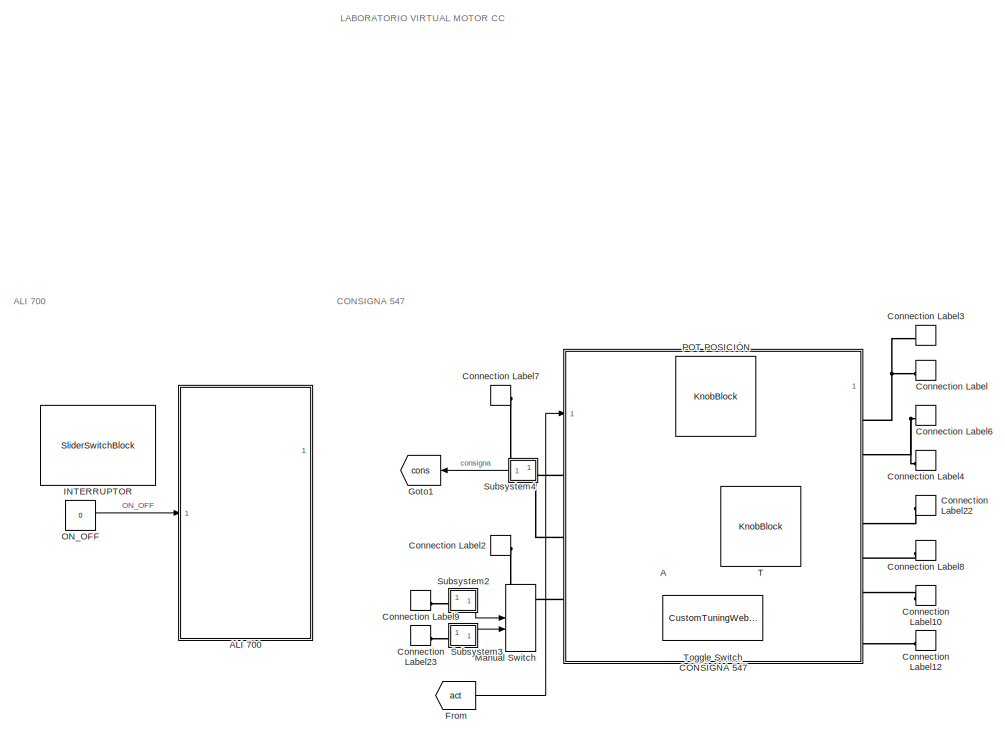
[diagram: root canvas - part 1/5, top left region]
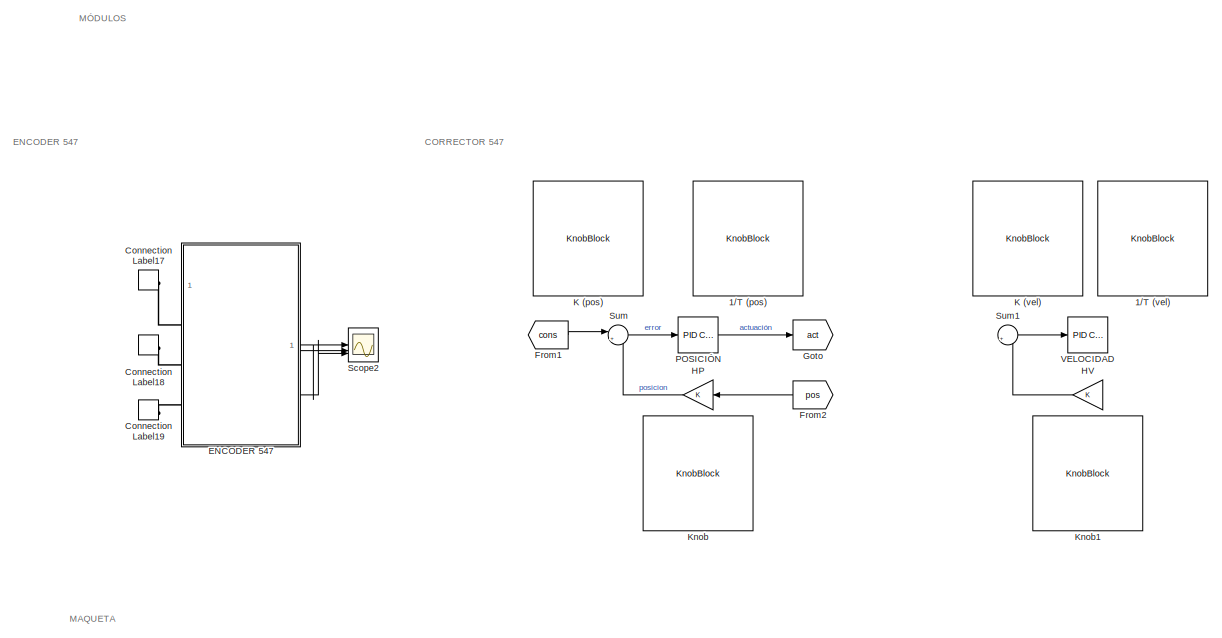
[diagram: root canvas - part 2/5, top right region]
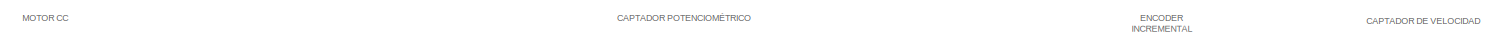
[diagram: root canvas - part 3/5, central region]
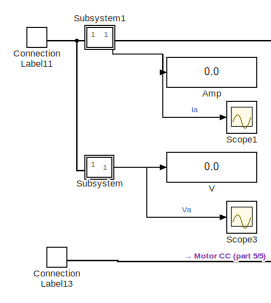
[diagram: root canvas - part 4/5, middle left region]
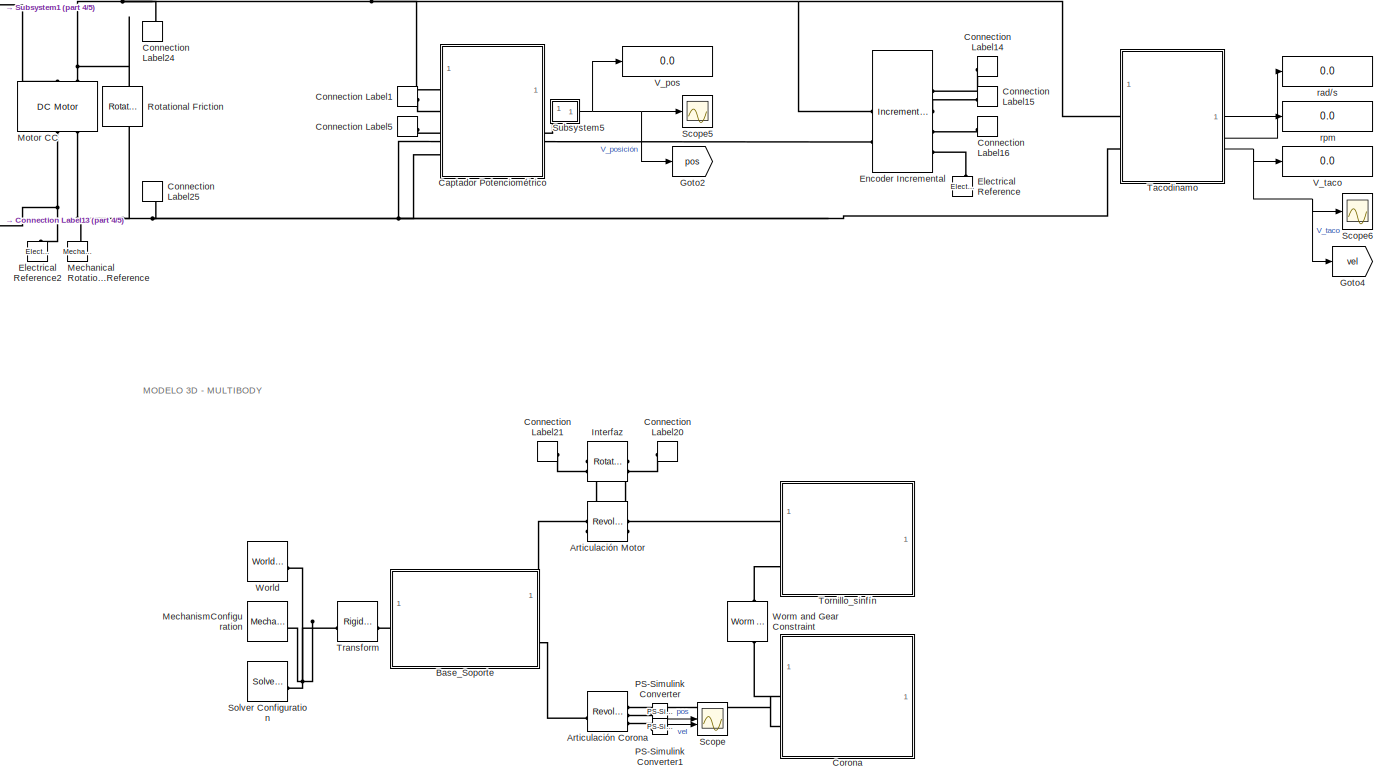
[diagram: root canvas - part 5/5, bottom center region]
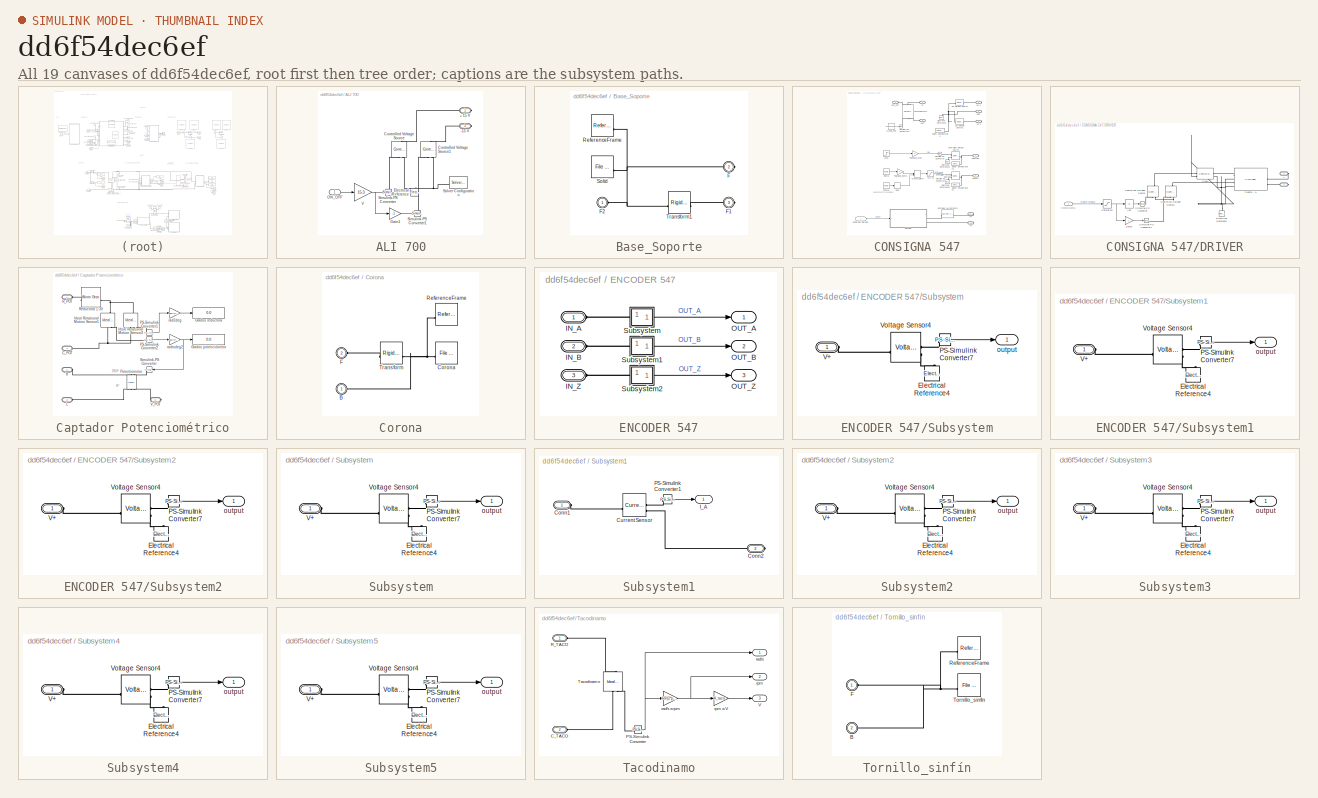
[diagram: thumbnail index - all 19 canvases of the model, root first then tree order]
MODEL slx_dd6f54dec6ef
KIND model
CONFIG AbsTol = auto
CONFIG EnableMultiTasking = off
CONFIG FixedStep = 0.0001
CONFIG MaxStep = 0.001
CONFIG MinStep = auto
CONFIG RelTol = auto
CONFIG SampleTimeConstraint = Unconstrained
CONFIG SolverName = VariableStepAuto
CONFIG StartTime = 0.0
CONFIG StopTime = 5
WORKSPACE source: mxarray member
WORKSPACE A = 5
WORKSPACE Frec = 1
WORKSPACE a = 1
BLOCK [KnobBlock] 1//T (pos)
  LabelPosition = Hide
  ScaleMax = 10
  TickInterval = 1
BLOCK [KnobBlock] 1//T (vel)
  LabelPosition = Hide
  ScaleMax = 10
  TickInterval = 1
BLOCK [KnobBlock] A
  LabelPosition = Hide
  ScaleMax = 10
  TickInterval = 1
BLOCK [SubSystem] ALI 700
BLOCK [PMIOPort] ALI 700/+ 15 V
  Side = Right
BLOCK [PMIOPort] ALI 700/-15 V
  Port = 2
  Side = Right
BLOCK [Reference] ALI 700/Controlled Voltage Source  REF=fl_lib/Electrical/Electrical Sources/Controlled Voltage
Source
  NameLocation = right
  SourceBlock = fl_lib/Electrical/Electrical Sources/Controlled Voltage\nSource
  SourceType = Controlled Voltage\nSource
BLOCK [Reference] ALI 700/Controlled Voltage Source1  REF=fl_lib/Electrical/Electrical Sources/Controlled Voltage
Source
  NameLocation = right
  SourceBlock = fl_lib/Electrical/Electrical Sources/Controlled Voltage\nSource
  SourceType = Controlled Voltage\nSource
BLOCK [Reference] ALI 700/Electrical Reference  REF=fl_lib/Electrical/Electrical Elements/Electrical Reference
  NameLocation = right
  SourceBlock = fl_lib/Electrical/Electrical Elements/Electrical Reference
  SourceType = Electrical Reference
BLOCK [Gain] ALI 700/Gain1
  Gain = -1
BLOCK [Inport] ALI 700/ON_OFF
BLOCK [Reference] ALI 700/Simulink-PS Converter  REF=nesl_utility/Simulink-PS
Converter
  SourceBlock = nesl_utility/Simulink-PS\nConverter
  SourceType = Simulink-PS\nConverter
BLOCK [Reference] ALI 700/Simulink-PS Converter1  REF=nesl_utility/Simulink-PS
Converter
  SourceBlock = nesl_utility/Simulink-PS\nConverter
  SourceType = Simulink-PS\nConverter
BLOCK [Reference] ALI 700/Solver Configuration  REF=nesl_utility/Solver
Configuration
  NameLocation = top
  SourceBlock = nesl_utility/Solver\nConfiguration
  SourceType = Solver\nConfiguration
BLOCK [Gain] ALI 700/V
  Gain = 15.3
BLOCK [Display] Amp
  Decimation = 1
  NameLocation = right
BLOCK [Reference] Articulación Corona  REF=sm_lib/Joints/Revolute Joint
  SourceBlock = sm_lib/Joints/Revolute Joint
  SourceType = Revolute Joint
BLOCK [Reference] Articulación Motor  REF=sm_lib/Joints/Revolute Joint
  SourceBlock = sm_lib/Joints/Revolute Joint
  SourceType = Revolute Joint
BLOCK [SubSystem] Base_Soporte
BLOCK [PMIOPort] Base_Soporte/F
  Port = 2
  Side = Right
BLOCK [PMIOPort] Base_Soporte/F1
  Port = 3
  Side = Right
BLOCK [PMIOPort] Base_Soporte/F2
  NameLocation = top
  Side = Left
BLOCK [Reference] Base_Soporte/ReferenceFrame  REF=sm_lib/Frames and
Transforms/Reference
Frame
  SourceBlock = sm_lib/Frames and\nTransforms/Reference\nFrame
  SourceType = Reference\nFrame
BLOCK [Reference] Base_Soporte/Solid  REF=sm_lib/Body Elements/File Solid
  SourceBlock = sm_lib/Body Elements/File Solid
  SourceType = File Solid
BLOCK [Reference] Base_Soporte/Transform1  REF=sm_lib/Frames and
Transforms/Rigid
Transform
  SourceBlock = sm_lib/Frames and\nTransforms/Rigid\nTransform
  SourceType = Rigid\nTransform
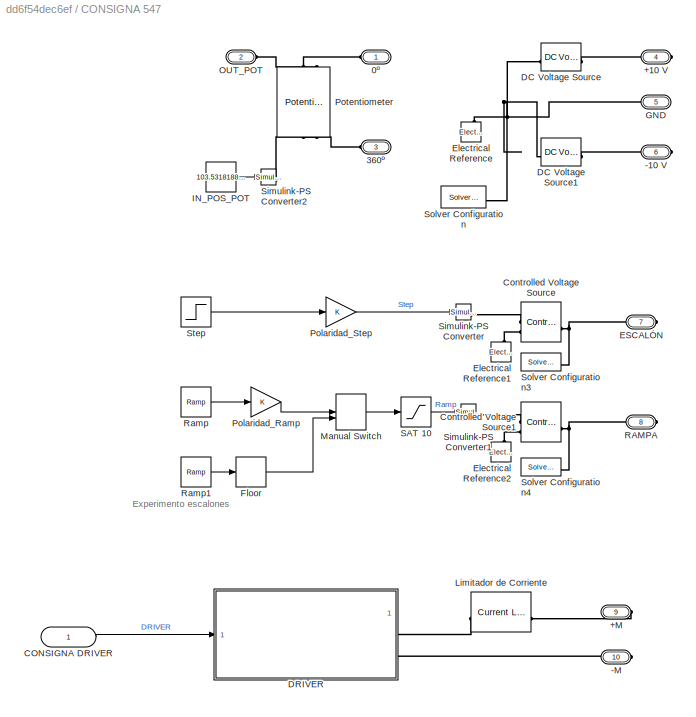
BLOCK [SubSystem] CONSIGNA 547
  PortSchema = {"entries":[{"content":{"sides":[{"content":{"connectorIds":["LConn1","LConn2","LConn3","In1"]},"type":"ConnectorPlacement.EquallySpacedRectSide","uuid":"4a8cfb57-dab5-486b-a591-dc2fea0d0b24"},{"content":{"connectorIds":["RConn1","RConn2","RConn3","RConn4","RConn5","RConn6","RConn7"],"side":"RIGHT"},"type":"ConnectorPlacement.EquallySpacedRectSide","uuid":"c23f5fb5-28b8-45c6-932c-b7e70ba2c44b"},{"...<+305ch>
BLOCK [PMIOPort] CONSIGNA 547/+10 V
  Port = 4
  Side = Right
BLOCK [PMIOPort] CONSIGNA 547/+M
  Port = 9
  Side = Right
BLOCK [PMIOPort] CONSIGNA 547/-10 V
  Port = 6
  Side = Right
BLOCK [PMIOPort] CONSIGNA 547/-M
  Port = 10
  Side = Right
BLOCK [PMIOPort] CONSIGNA 547/0º
  Side = Left
BLOCK [PMIOPort] CONSIGNA 547/360º
  Port = 3
  Side = Left
BLOCK [Inport] CONSIGNA 547/CONSIGNA  DRIVER
  IconDisplay = Signal name
BLOCK [Reference] CONSIGNA 547/Controlled Voltage Source  REF=fl_lib/Electrical/Electrical Sources/Controlled Voltage
Source
  SourceBlock = fl_lib/Electrical/Electrical Sources/Controlled Voltage\nSource
  SourceType = Controlled Voltage\nSource
BLOCK [Reference] CONSIGNA 547/Controlled Voltage Source1  REF=fl_lib/Electrical/Electrical Sources/Controlled Voltage
Source
  SourceBlock = fl_lib/Electrical/Electrical Sources/Controlled Voltage\nSource
  SourceType = Controlled Voltage\nSource
BLOCK [Reference] CONSIGNA 547/DC Voltage Source  REF=fl_lib/Electrical/Electrical Sources/DC Voltage Source
  SourceBlock = fl_lib/Electrical/Electrical Sources/DC Voltage Source
  SourceType = DC Voltage Source
BLOCK [Reference] CONSIGNA 547/DC Voltage Source1  REF=fl_lib/Electrical/Electrical Sources/DC Voltage Source
  SourceBlock = fl_lib/Electrical/Electrical Sources/DC Voltage Source
  SourceType = DC Voltage Source
BLOCK [SubSystem] CONSIGNA 547/DRIVER
BLOCK [PMIOPort] CONSIGNA 547/DRIVER/+
  Side = Right
BLOCK [PMIOPort] CONSIGNA 547/DRIVER/-
  Port = 2
  Side = Right
BLOCK [Abs] CONSIGNA 547/DRIVER/Abs
  SaturateOnIntegerOverflow = off
BLOCK [Inport] CONSIGNA 547/DRIVER/CONSIGNA
BLOCK [Reference] CONSIGNA 547/DRIVER/Controlled Voltage Source  REF=fl_lib/Electrical/Electrical Sources/Controlled Voltage
Source
  NameLocation = right
  SourceBlock = fl_lib/Electrical/Electrical Sources/Controlled Voltage\nSource
  SourceType = Controlled Voltage\nSource
BLOCK [Reference] CONSIGNA 547/DRIVER/Controlled Voltage Source1  REF=fl_lib/Electrical/Electrical Sources/Controlled Voltage
Source
  NameLocation = right
  SourceBlock = fl_lib/Electrical/Electrical Sources/Controlled Voltage\nSource
  SourceType = Controlled Voltage\nSource
BLOCK [Reference] CONSIGNA 547/DRIVER/Electrical Reference  REF=fl_lib/Electrical/Electrical Elements/Electrical Reference
  NameLocation = right
  SourceBlock = fl_lib/Electrical/Electrical Elements/Electrical Reference
  SourceType = Electrical Reference
BLOCK [Gain] CONSIGNA 547/DRIVER/Gain2
  Gain = -1
BLOCK [Reference] CONSIGNA 547/DRIVER/PWM  REF=ee_lib/Integrated Circuits/Controlled PWM
Voltage
  NameLocation = top
  SourceBlock = ee_lib/Integrated Circuits/Controlled PWM\nVoltage
  SourceType = Controlled PWM\nVoltage
BLOCK [Reference] CONSIGNA 547/DRIVER/Puente - H  REF=ee_lib/Semiconductors &
Converters/Converters/H-Bridge
  NameLocation = top
  SourceBlock = ee_lib/Semiconductors &\nConverters/Converters/H-Bridge
  SourceType = H-Bridge
BLOCK [Saturate] CONSIGNA 547/DRIVER/Saturation
  LowerLimit = -PWM_sat
  UpperLimit = PWM_sat
BLOCK [Reference] CONSIGNA 547/DRIVER/Simulink-PS Converter  REF=nesl_utility/Simulink-PS
Converter
  SourceBlock = nesl_utility/Simulink-PS\nConverter
  SourceType = Simulink-PS\nConverter
BLOCK [Reference] CONSIGNA 547/DRIVER/Simulink-PS Converter1  REF=nesl_utility/Simulink-PS
Converter
  SourceBlock = nesl_utility/Simulink-PS\nConverter
  SourceType = Simulink-PS\nConverter
BLOCK [PMIOPort] CONSIGNA 547/ESCALÓN
  Port = 7
  Side = Right
BLOCK [Reference] CONSIGNA 547/Electrical Reference  REF=fl_lib/Electrical/Electrical Elements/Electrical Reference
  NameLocation = right
  SourceBlock = fl_lib/Electrical/Electrical Elements/Electrical Reference
  SourceType = Electrical Reference
BLOCK [Reference] CONSIGNA 547/Electrical Reference1  REF=fl_lib/Electrical/Electrical Elements/Electrical Reference
  NameLocation = right
  SourceBlock = fl_lib/Electrical/Electrical Elements/Electrical Reference
  SourceType = Electrical Reference
BLOCK [Reference] CONSIGNA 547/Electrical Reference2  REF=fl_lib/Electrical/Electrical Elements/Electrical Reference
  NameLocation = right
  SourceBlock = fl_lib/Electrical/Electrical Elements/Electrical Reference
  SourceType = Electrical Reference
BLOCK [Rounding] CONSIGNA 547/Floor
BLOCK [PMIOPort] CONSIGNA 547/GND
  Port = 5
  Side = Right
BLOCK [Constant] CONSIGNA 547/IN_POS_POT
  Value = 103.5318188558803
BLOCK [Reference] CONSIGNA 547/Limitador de Corriente  REF=ee_lib/Semiconductors &
Converters/Current Limiter
  NameLocation = top
  SourceBlock = ee_lib/Semiconductors &\nConverters/Current Limiter
  SourceType = Current Limiter
BLOCK [ManualSwitch] CONSIGNA 547/Manual Switch
BLOCK [PMIOPort] CONSIGNA 547/OUT_POT
  NameLocation = top
  Port = 2
  Side = Left
BLOCK [Gain] CONSIGNA 547/Polaridad_Ramp
BLOCK [Gain] CONSIGNA 547/Polaridad_Step
BLOCK [Reference] CONSIGNA 547/Potentiometer  REF=ee_lib/Passive/Potentiometer
  NameLocation = left
  SourceBlock = ee_lib/Passive/Potentiometer
  SourceType = Potentiometer
BLOCK [PMIOPort] CONSIGNA 547/RAMPA
  Port = 8
  Side = Right
BLOCK [Reference] CONSIGNA 547/Ramp  REF=simulink/Sources/Ramp
  SourceBlock = simulink/Sources/Ramp
  SourceType = Ramp
BLOCK [Reference] CONSIGNA 547/Ramp1  REF=simulink/Sources/Ramp
  SourceBlock = simulink/Sources/Ramp
  SourceType = Ramp
BLOCK [Saturate] CONSIGNA 547/SAT 10
  LowerLimit = -10
  UpperLimit = 10
BLOCK [Reference] CONSIGNA 547/Simulink-PS Converter  REF=nesl_utility/Simulink-PS
Converter
  SourceBlock = nesl_utility/Simulink-PS\nConverter
  SourceType = Simulink-PS\nConverter
BLOCK [Reference] CONSIGNA 547/Simulink-PS Converter1  REF=nesl_utility/Simulink-PS
Converter
  SourceBlock = nesl_utility/Simulink-PS\nConverter
  SourceType = Simulink-PS\nConverter
BLOCK [Reference] CONSIGNA 547/Simulink-PS Converter2  REF=nesl_utility/Simulink-PS
Converter
  SourceBlock = nesl_utility/Simulink-PS\nConverter
  SourceType = Simulink-PS\nConverter
BLOCK [Reference] CONSIGNA 547/Solver Configuration  REF=nesl_utility/Solver
Configuration
  SourceBlock = nesl_utility/Solver\nConfiguration
  SourceType = Solver\nConfiguration
BLOCK [Reference] CONSIGNA 547/Solver Configuration3  REF=nesl_utility/Solver
Configuration
  SourceBlock = nesl_utility/Solver\nConfiguration
  SourceType = Solver\nConfiguration
BLOCK [Reference] CONSIGNA 547/Solver Configuration4  REF=nesl_utility/Solver
Configuration
  SourceBlock = nesl_utility/Solver\nConfiguration
  SourceType = Solver\nConfiguration
BLOCK [Step] CONSIGNA 547/Step
  After = 7
  Before = 3
  SampleTime = 0
  Time = 2
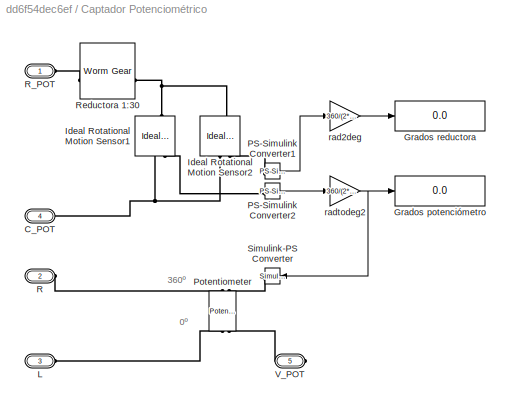
BLOCK [SubSystem] Captador Potenciométrico
BLOCK [PMIOPort] Captador Potenciométrico/C_POT
  Port = 4
  Side = Left
BLOCK [Display] Captador Potenciométrico/Grados potenciómetro
  Decimation = 1
BLOCK [Display] Captador Potenciométrico/Grados reductora
  Decimation = 1
BLOCK [Reference] Captador Potenciométrico/Ideal Rotational Motion Sensor1  REF=fl_lib/Mechanical/Mechanical Sensors/Ideal Rotational
Motion Sensor
  NameLocation = left
  SourceBlock = fl_lib/Mechanical/Mechanical Sensors/Ideal Rotational\nMotion Sensor
  SourceType = Ideal Rotational\nMotion Sensor
BLOCK [Reference] Captador Potenciométrico/Ideal Rotational Motion Sensor2  REF=fl_lib/Mechanical/Mechanical Sensors/Ideal Rotational
Motion Sensor
  NameLocation = left
  SourceBlock = fl_lib/Mechanical/Mechanical Sensors/Ideal Rotational\nMotion Sensor
  SourceType = Ideal Rotational\nMotion Sensor
BLOCK [PMIOPort] Captador Potenciométrico/L
  NameLocation = top
  Port = 3
  Side = Left
BLOCK [Reference] Captador Potenciométrico/PS-Simulink Converter1  REF=nesl_utility/PS-Simulink
Converter
  SourceBlock = nesl_utility/PS-Simulink\nConverter
  SourceType = PS-Simulink\nConverter
BLOCK [Reference] Captador Potenciométrico/PS-Simulink Converter2  REF=nesl_utility/PS-Simulink
Converter
  SourceBlock = nesl_utility/PS-Simulink\nConverter
  SourceType = PS-Simulink\nConverter
BLOCK [Reference] Captador Potenciométrico/Potentiometer  REF=ee_lib/Passive/Potentiometer
  NameLocation = left
  SourceBlock = ee_lib/Passive/Potentiometer
  SourceType = Potentiometer
BLOCK [PMIOPort] Captador Potenciométrico/R
  NameLocation = top
  Port = 2
  Side = Left
BLOCK [PMIOPort] Captador Potenciométrico/R_POT
  Side = Left
BLOCK [Reference] Captador Potenciométrico/Reductora 1:30  REF=sdl_lib/Gears/Worm Gear
  NameLocation = top
  SourceBlock = sdl_lib/Gears/Worm Gear
  SourceType = Worm Gear
BLOCK [Reference] Captador Potenciométrico/Simulink-PS Converter  REF=nesl_utility/Simulink-PS
Converter
  NameLocation = top
  SourceBlock = nesl_utility/Simulink-PS\nConverter
  SourceType = Simulink-PS\nConverter
BLOCK [PMIOPort] Captador Potenciométrico/V_POT
  Port = 5
  Side = Right
BLOCK [Gain] Captador Potenciométrico/rad2deg
  Gain = 360/(2*pi)
BLOCK [Gain] Captador Potenciométrico/radtodeg2
  Gain = 360/(2*pi)
BLOCK [ConnectionLabel] Connection Label
  Label = pot_positivo
BLOCK [ConnectionLabel] Connection Label1
  Label = pot_positivo
  NameLocation = top
BLOCK [ConnectionLabel] Connection Label10
  Label = M_positivo
BLOCK [ConnectionLabel] Connection Label11
  Label = M_positivo
  NameLocation = top
BLOCK [ConnectionLabel] Connection Label12
  Label = M_negativo
BLOCK [ConnectionLabel] Connection Label13
  Label = M_negativo
  NameLocation = top
BLOCK [ConnectionLabel] Connection Label14
  Label = A
BLOCK [ConnectionLabel] Connection Label15
  Label = B
BLOCK [ConnectionLabel] Connection Label16
  Label = Z
BLOCK [ConnectionLabel] Connection Label17
  Label = A
  NameLocation = top
BLOCK [ConnectionLabel] Connection Label18
  Label = B
  NameLocation = top
BLOCK [ConnectionLabel] Connection Label19
  Label = Z
  NameLocation = top
BLOCK [ConnectionLabel] Connection Label2
  Label = pot_pos_positivo
  NameLocation = top
BLOCK [ConnectionLabel] Connection Label20
  Label = R_3D
BLOCK [ConnectionLabel] Connection Label21
  Label = C_3D
  NameLocation = top
BLOCK [ConnectionLabel] Connection Label22
  Label = Step
BLOCK [ConnectionLabel] Connection Label23
  Label = Ramp
  NameLocation = top
BLOCK [ConnectionLabel] Connection Label24
  Label = R_3D
  NameLocation = left
BLOCK [ConnectionLabel] Connection Label25
  Label = C_3D
  NameLocation = right
BLOCK [ConnectionLabel] Connection Label3
  Label = pot_pos_positivo
BLOCK [ConnectionLabel] Connection Label4
  Label = pot_negativo
BLOCK [ConnectionLabel] Connection Label5
  Label = pot_negativo
  NameLocation = top
BLOCK [ConnectionLabel] Connection Label6
  Label = pot_pos_negativo
BLOCK [ConnectionLabel] Connection Label7
  Label = pot_pos_negativo
  NameLocation = top
BLOCK [ConnectionLabel] Connection Label8
  Label = Ramp
BLOCK [ConnectionLabel] Connection Label9
  Label = Step
  NameLocation = top
BLOCK [SubSystem] Corona
BLOCK [PMIOPort] Corona/B
  NameLocation = top
  Side = Left
BLOCK [Reference] Corona/Corona  REF=sm_lib/Body Elements/File Solid
  NameLocation = top
  SourceBlock = sm_lib/Body Elements/File Solid
  SourceType = File Solid
BLOCK [PMIOPort] Corona/F
  NameLocation = top
  Port = 2
  Side = Left
BLOCK [Reference] Corona/ReferenceFrame  REF=sm_lib/Frames and
Transforms/Reference
Frame
  NameLocation = top
  SourceBlock = sm_lib/Frames and\nTransforms/Reference\nFrame
  SourceType = Reference\nFrame
BLOCK [Reference] Corona/Transform  REF=sm_lib/Frames and
Transforms/Rigid
Transform
  NameLocation = top
  SourceBlock = sm_lib/Frames and\nTransforms/Rigid\nTransform
  SourceType = Rigid\nTransform
BLOCK [SubSystem] ENCODER 547
BLOCK [PMIOPort] ENCODER 547/IN_A
  Side = Left
BLOCK [PMIOPort] ENCODER 547/IN_B
  Port = 2
  Side = Left
BLOCK [PMIOPort] ENCODER 547/IN_Z
  Port = 3
  Side = Left
BLOCK [Outport] ENCODER 547/OUT_A
  NameLocation = right
BLOCK [Outport] ENCODER 547/OUT_B
  NameLocation = right
  Port = 2
BLOCK [Outport] ENCODER 547/OUT_Z
  NameLocation = right
  Port = 3
BLOCK [SubSystem] ENCODER 547/Subsystem
BLOCK [Reference] ENCODER 547/Subsystem/Electrical Reference4  REF=fl_lib/Electrical/Electrical Elements/Electrical Reference
  NameLocation = right
  SourceBlock = fl_lib/Electrical/Electrical Elements/Electrical Reference
  SourceType = Electrical Reference
BLOCK [Reference] ENCODER 547/Subsystem/PS-Simulink Converter7  REF=nesl_utility/PS-Simulink
Converter
  SourceBlock = nesl_utility/PS-Simulink\nConverter
  SourceType = PS-Simulink\nConverter
BLOCK [PMIOPort] ENCODER 547/Subsystem/V+
  Side = Left
BLOCK [Reference] ENCODER 547/Subsystem/Voltage Sensor4  REF=fl_lib/Electrical/Electrical Sensors/Voltage Sensor
  NameLocation = top
  SourceBlock = fl_lib/Electrical/Electrical Sensors/Voltage Sensor
  SourceType = Voltage Sensor
BLOCK [Outport] ENCODER 547/Subsystem/output
BLOCK [SubSystem] ENCODER 547/Subsystem1
BLOCK [Reference] ENCODER 547/Subsystem1/Electrical Reference4  REF=fl_lib/Electrical/Electrical Elements/Electrical Reference
  NameLocation = right
  SourceBlock = fl_lib/Electrical/Electrical Elements/Electrical Reference
  SourceType = Electrical Reference
BLOCK [Reference] ENCODER 547/Subsystem1/PS-Simulink Converter7  REF=nesl_utility/PS-Simulink
Converter
  SourceBlock = nesl_utility/PS-Simulink\nConverter
  SourceType = PS-Simulink\nConverter
BLOCK [PMIOPort] ENCODER 547/Subsystem1/V+
  Side = Left
BLOCK [Reference] ENCODER 547/Subsystem1/Voltage Sensor4  REF=fl_lib/Electrical/Electrical Sensors/Voltage Sensor
  NameLocation = top
  SourceBlock = fl_lib/Electrical/Electrical Sensors/Voltage Sensor
  SourceType = Voltage Sensor
BLOCK [Outport] ENCODER 547/Subsystem1/output
BLOCK [SubSystem] ENCODER 547/Subsystem2
BLOCK [Reference] ENCODER 547/Subsystem2/Electrical Reference4  REF=fl_lib/Electrical/Electrical Elements/Electrical Reference
  NameLocation = right
  SourceBlock = fl_lib/Electrical/Electrical Elements/Electrical Reference
  SourceType = Electrical Reference
BLOCK [Reference] ENCODER 547/Subsystem2/PS-Simulink Converter7  REF=nesl_utility/PS-Simulink
Converter
  SourceBlock = nesl_utility/PS-Simulink\nConverter
  SourceType = PS-Simulink\nConverter
BLOCK [PMIOPort] ENCODER 547/Subsystem2/V+
  Side = Left
BLOCK [Reference] ENCODER 547/Subsystem2/Voltage Sensor4  REF=fl_lib/Electrical/Electrical Sensors/Voltage Sensor
  NameLocation = top
  SourceBlock = fl_lib/Electrical/Electrical Sensors/Voltage Sensor
  SourceType = Voltage Sensor
BLOCK [Outport] ENCODER 547/Subsystem2/output
BLOCK [Reference] Electrical Reference  REF=fl_lib/Electrical/Electrical Elements/Electrical Reference
  NameLocation = right
  SourceBlock = fl_lib/Electrical/Electrical Elements/Electrical Reference
  SourceType = Electrical Reference
BLOCK [Reference] Electrical Reference2  REF=fl_lib/Electrical/Electrical Elements/Electrical Reference
  NameLocation = right
  SourceBlock = fl_lib/Electrical/Electrical Elements/Electrical Reference
  SourceType = Electrical Reference
BLOCK [Reference] Encoder Incremental  REF=ee_lib/Sensors &
Transducers/Incremental Shaft
Encoder
  SourceBlock = ee_lib/Sensors &\nTransducers/Incremental Shaft\nEncoder
  SourceType = Incremental Shaft\nEncoder
BLOCK [From] From
  GotoTag = act
BLOCK [From] From1
  GotoTag = cons
BLOCK [From] From2
  GotoTag = pos
  NameLocation = top
BLOCK [Goto] Goto
  GotoTag = act
BLOCK [Goto] Goto1
  GotoTag = cons
  NameLocation = top
BLOCK [Goto] Goto2
  GotoTag = pos
BLOCK [Goto] Goto4
  GotoTag = vel
BLOCK [Gain] HP
BLOCK [Gain] HV
BLOCK [SliderSwitchBlock] INTERRUPTOR
  LabelPosition = Hide
BLOCK [Reference] Interfaz  REF=fl_lib/Mechanical/Multibody Interfaces/Rotational Multibody
Interface
  NameLocation = top
  SourceBlock = fl_lib/Mechanical/Multibody Interfaces/Rotational Multibody\nInterface
  SourceType = Rotational Multibody\nInterface
BLOCK [KnobBlock] K (pos)
  LabelPosition = Hide
  ScaleMax = 10
  TickInterval = 1
BLOCK [KnobBlock] K (vel)
  LabelPosition = Hide
  ScaleMax = 10
  TickInterval = 1
BLOCK [KnobBlock] Knob
  LabelPosition = Hide
  ScaleMax = 1
  TickInterval = 0.1
BLOCK [KnobBlock] Knob1
  LabelPosition = Hide
  ScaleMax = 2
  TickInterval = 0.2
BLOCK [ManualSwitch] Manual Switch
BLOCK [Reference] Mechanical Rotational Reference  REF=fl_lib/Mechanical/Rotational Elements/Mechanical
Rotational Reference
  NameLocation = right
  SourceBlock = fl_lib/Mechanical/Rotational Elements/Mechanical\nRotational Reference
  SourceType = Mechanical\nRotational Reference
BLOCK [Reference] MechanismConfiguration  REF=sm_lib/Utilities/Mechanism
Configuration
  SourceBlock = sm_lib/Utilities/Mechanism\nConfiguration
  SourceType = Mechanism\nConfiguration
BLOCK [Reference] Motor CC  REF=ee_lib/Electromechanical/Brushed Motors/DC Motor
  SourceBlock = ee_lib/Electromechanical/Brushed Motors/DC Motor
  SourceType = DC Motor
BLOCK [Constant] ON_OFF
  Value = 0
BLOCK [Reference] POSICIÓN  REF=slpidlib/PID Controller
  LibrarySourceBlock = simulink/Continuous/PID Controller
  SourceBlock = slpidlib/PID Controller
  SourceType = PID 1dof
BLOCK [KnobBlock] POT POSICIÓN
  LabelPosition = Hide
  ScaleMax = 360
  TickInterval = 20
BLOCK [Reference] PS-Simulink Converter  REF=nesl_utility/PS-Simulink
Converter
  SourceBlock = nesl_utility/PS-Simulink\nConverter
  SourceType = PS-Simulink\nConverter
BLOCK [Reference] PS-Simulink Converter1  REF=nesl_utility/PS-Simulink
Converter
  SourceBlock = nesl_utility/PS-Simulink\nConverter
  SourceType = PS-Simulink\nConverter
BLOCK [Reference] Rotational Friction  REF=fl_lib/Mechanical/Rotational Elements/Rotational Friction
  NameLocation = left
  SourceBlock = fl_lib/Mechanical/Rotational Elements/Rotational Friction
  SourceType = Rotational Friction
BLOCK [Scope] Scope
  Floating = off
  NumInputPorts = 2
  ScopeSpecificationString = Simulink.scopes.TimeScopeBlockCfg('CurrentConfiguration', extmgr.ConfigurationSet(extmgr.Configuration('Core','General UI',true),extmgr.Configuration('Core','Source UI',true),extmgr.Configuration('Sources','WiredSimulink',true,'DataLoggingVariableName','ScopeData1'),extmgr.Configuration('Visuals','Time Domain',true,'SerializedDisplays',{struct('MinYLimReal','-5.56307','MaxYLimReal','8.4651','YLabe...<+1393ch>
BLOCK [Scope] Scope1
  Floating = off
  NumInputPorts = 1
  ScopeSpecificationString = Simulink.scopes.TimeScopeBlockCfg('CurrentConfiguration', extmgr.ConfigurationSet(extmgr.Configuration('Core','General UI',true),extmgr.Configuration('Core','Source UI',true),extmgr.Configuration('Sources','WiredSimulink',true,'DataLoggingVariableName','ScopeData1'),extmgr.Configuration('Visuals','Time Domain',true,'SerializedDisplays',{struct('MinYLimReal','-1.02115','MaxYLimReal','1.03087','YLab...<+1403ch>
BLOCK [Scope] Scope2
  Floating = off
  NumInputPorts = 3
  ScopeSpecificationString = Simulink.scopes.TimeScopeBlockCfg('CurrentConfiguration', extmgr.ConfigurationSet(extmgr.Configuration('Core','General UI',true),extmgr.Configuration('Core','Source UI',true),extmgr.Configuration('Sources','WiredSimulink',true,'DataLoggingVariableName','ScopeData1'),extmgr.Configuration('Visuals','Time Domain',true,'SerializedDisplays',{struct('MinYLimReal','-0.04325','MaxYLimReal','5.02351','YLab...<+1543ch>
BLOCK [Scope] Scope3
  Floating = off
  NumInputPorts = 1
  ScopeSpecificationString = Simulink.scopes.TimeScopeBlockCfg('CurrentConfiguration', extmgr.ConfigurationSet(extmgr.Configuration('Core','General UI',true),extmgr.Configuration('Core','Source UI',true),extmgr.Configuration('Sources','WiredSimulink',true,'DataLoggingVariableName','ScopeData1'),extmgr.Configuration('Visuals','Time Domain',true,'SerializedDisplays',{struct('MinYLimReal','-4.31415','MaxYLimReal','14.24995','YLa...<+1442ch>
BLOCK [Scope] Scope5
  Floating = off
  NumInputPorts = 1
  ScopeSpecificationString = Simulink.scopes.TimeScopeBlockCfg('CurrentConfiguration', extmgr.ConfigurationSet(extmgr.Configuration('Core','General UI',true),extmgr.Configuration('Core','Source UI',true),extmgr.Configuration('Sources','WiredSimulink',true,'DataLoggingVariableName','ScopeData2'),extmgr.Configuration('Visuals','Time Domain',true,'SerializedDisplays',{struct('MinYLimReal','-0.26815','MaxYLimReal','10.94251','YLa...<+1421ch>
BLOCK [Scope] Scope6
  Floating = off
  NumInputPorts = 1
  ScopeSpecificationString = Simulink.scopes.TimeScopeBlockCfg('CurrentConfiguration', extmgr.ConfigurationSet(extmgr.Configuration('Core','General UI',true),extmgr.Configuration('Core','Source UI',true),extmgr.Configuration('Sources','WiredSimulink',true,'DataLoggingVariableName','ScopeData1'),extmgr.Configuration('Visuals','Time Domain',true,'SerializedDisplays',{struct('MinYLimReal','-1.84446','MaxYLimReal','16.60017','YLa...<+1743ch>
BLOCK [Reference] Solver Configuration  REF=nesl_utility/Solver
Configuration
  SourceBlock = nesl_utility/Solver\nConfiguration
  SourceType = Solver\nConfiguration
BLOCK [SubSystem] Subsystem
BLOCK [Reference] Subsystem/Electrical Reference4  REF=fl_lib/Electrical/Electrical Elements/Electrical Reference
  NameLocation = right
  SourceBlock = fl_lib/Electrical/Electrical Elements/Electrical Reference
  SourceType = Electrical Reference
BLOCK [Reference] Subsystem/PS-Simulink Converter7  REF=nesl_utility/PS-Simulink
Converter
  SourceBlock = nesl_utility/PS-Simulink\nConverter
  SourceType = PS-Simulink\nConverter
BLOCK [PMIOPort] Subsystem/V+
  Side = Left
BLOCK [Reference] Subsystem/Voltage Sensor4  REF=fl_lib/Electrical/Electrical Sensors/Voltage Sensor
  NameLocation = top
  SourceBlock = fl_lib/Electrical/Electrical Sensors/Voltage Sensor
  SourceType = Voltage Sensor
BLOCK [Outport] Subsystem/output
BLOCK [SubSystem] Subsystem1
  PortSchema = {"entries":[{"content":{"sides":[{"content":{"connectorIds":["LConn1"]},"type":"ConnectorPlacement.EquallySpacedRectSide","uuid":"5f01206e-22b9-410b-acd2-df307548d4ec"},{"content":{"connectorIds":["RConn1"],"side":"RIGHT"},"type":"ConnectorPlacement.EquallySpacedRectSide","uuid":"8e9acb11-d78e-4e8a-8f36-3c08acadde04"},{"content":{"side":"TOP"},"type":"ConnectorPlacement.EquallySpacedRectSide","uui...<+377ch>
BLOCK [PMIOPort] Subsystem1/Conn1
  Side = Left
BLOCK [PMIOPort] Subsystem1/Conn2
  Port = 2
  Side = Right
BLOCK [Reference] Subsystem1/Current Sensor  REF=fl_lib/Electrical/Electrical Sensors/Current Sensor
  SourceBlock = fl_lib/Electrical/Electrical Sensors/Current Sensor
  SourceType = Current Sensor
BLOCK [Outport] Subsystem1/I_A
BLOCK [Reference] Subsystem1/PS-Simulink Converter1  REF=nesl_utility/PS-Simulink
Converter
  SourceBlock = nesl_utility/PS-Simulink\nConverter
  SourceType = PS-Simulink\nConverter
BLOCK [SubSystem] Subsystem2
BLOCK [Reference] Subsystem2/Electrical Reference4  REF=fl_lib/Electrical/Electrical Elements/Electrical Reference
  NameLocation = right
  SourceBlock = fl_lib/Electrical/Electrical Elements/Electrical Reference
  SourceType = Electrical Reference
BLOCK [Reference] Subsystem2/PS-Simulink Converter7  REF=nesl_utility/PS-Simulink
Converter
  SourceBlock = nesl_utility/PS-Simulink\nConverter
  SourceType = PS-Simulink\nConverter
BLOCK [PMIOPort] Subsystem2/V+
  Side = Left
BLOCK [Reference] Subsystem2/Voltage Sensor4  REF=fl_lib/Electrical/Electrical Sensors/Voltage Sensor
  NameLocation = top
  SourceBlock = fl_lib/Electrical/Electrical Sensors/Voltage Sensor
  SourceType = Voltage Sensor
BLOCK [Outport] Subsystem2/output
BLOCK [SubSystem] Subsystem3
BLOCK [Reference] Subsystem3/Electrical Reference4  REF=fl_lib/Electrical/Electrical Elements/Electrical Reference
  NameLocation = right
  SourceBlock = fl_lib/Electrical/Electrical Elements/Electrical Reference
  SourceType = Electrical Reference
BLOCK [Reference] Subsystem3/PS-Simulink Converter7  REF=nesl_utility/PS-Simulink
Converter
  SourceBlock = nesl_utility/PS-Simulink\nConverter
  SourceType = PS-Simulink\nConverter
BLOCK [PMIOPort] Subsystem3/V+
  Side = Left
BLOCK [Reference] Subsystem3/Voltage Sensor4  REF=fl_lib/Electrical/Electrical Sensors/Voltage Sensor
  NameLocation = top
  SourceBlock = fl_lib/Electrical/Electrical Sensors/Voltage Sensor
  SourceType = Voltage Sensor
BLOCK [Outport] Subsystem3/output
BLOCK [SubSystem] Subsystem4
  NameLocation = top
BLOCK [Reference] Subsystem4/Electrical Reference4  REF=fl_lib/Electrical/Electrical Elements/Electrical Reference
  NameLocation = right
  SourceBlock = fl_lib/Electrical/Electrical Elements/Electrical Reference
  SourceType = Electrical Reference
BLOCK [Reference] Subsystem4/PS-Simulink Converter7  REF=nesl_utility/PS-Simulink
Converter
  SourceBlock = nesl_utility/PS-Simulink\nConverter
  SourceType = PS-Simulink\nConverter
BLOCK [PMIOPort] Subsystem4/V+
  Side = Left
BLOCK [Reference] Subsystem4/Voltage Sensor4  REF=fl_lib/Electrical/Electrical Sensors/Voltage Sensor
  NameLocation = top
  SourceBlock = fl_lib/Electrical/Electrical Sensors/Voltage Sensor
  SourceType = Voltage Sensor
BLOCK [Outport] Subsystem4/output
BLOCK [SubSystem] Subsystem5
BLOCK [Reference] Subsystem5/Electrical Reference4  REF=fl_lib/Electrical/Electrical Elements/Electrical Reference
  NameLocation = right
  SourceBlock = fl_lib/Electrical/Electrical Elements/Electrical Reference
  SourceType = Electrical Reference
BLOCK [Reference] Subsystem5/PS-Simulink Converter7  REF=nesl_utility/PS-Simulink
Converter
  SourceBlock = nesl_utility/PS-Simulink\nConverter
  SourceType = PS-Simulink\nConverter
BLOCK [PMIOPort] Subsystem5/V+
  Side = Left
BLOCK [Reference] Subsystem5/Voltage Sensor4  REF=fl_lib/Electrical/Electrical Sensors/Voltage Sensor
  NameLocation = top
  SourceBlock = fl_lib/Electrical/Electrical Sensors/Voltage Sensor
  SourceType = Voltage Sensor
BLOCK [Outport] Subsystem5/output
BLOCK [Sum] Sum
  Inputs = |+-
BLOCK [Sum] Sum1
  Inputs = |+-
BLOCK [KnobBlock] T
  LabelPosition = Hide
  ScaleMax = 10
  TickInterval = 1
BLOCK [SubSystem] Tacodinamo
BLOCK [PMIOPort] Tacodinamo/C_TACO
  Port = 2
  Side = Left
BLOCK [Reference] Tacodinamo/PS-Simulink Converter  REF=nesl_utility/PS-Simulink
Converter
  SourceBlock = nesl_utility/PS-Simulink\nConverter
  SourceType = PS-Simulink\nConverter
BLOCK [PMIOPort] Tacodinamo/R_TACO
  Side = Left
BLOCK [Reference] Tacodinamo/Tacodinamo  REF=fl_lib/Mechanical/Mechanical Sensors/Ideal Rotational
Motion Sensor
  NameLocation = left
  SourceBlock = fl_lib/Mechanical/Mechanical Sensors/Ideal Rotational\nMotion Sensor
  SourceType = Ideal Rotational\nMotion Sensor
BLOCK [Outport] Tacodinamo/V
  Port = 3
BLOCK [Outport] Tacodinamo/rad//s
BLOCK [Gain] Tacodinamo/rad//s a rpm
  Gain = 60/(2*pi)
BLOCK [Outport] Tacodinamo/rpm
  Port = 2
BLOCK [Gain] Tacodinamo/rpm a V
  Gain = K_taco
BLOCK [CustomTuningWebBlock] Toggle Switch
  Configuration = {"components":[{"name":"CustomSwitchStateComponent","settings":{"position":[0,0,1,1],"showAllLabels":1,"states":[{"HitRegion":{"position":[0.03,0,0.518,1]},"Image":{"position":[0.24928571428571428,0,1,0.5014285714285714],"size":[1,0.5014285714285714],"src":"data:image\/svg+xml;base64,PHN2ZyB4bWxucz0iaHR0cDovL3d3dy53My5vcmcvMjAwMC9zdmciIHhtbG5zOnhsaW5rPSJodHRwOi8vd3d3LnczLm9yZy8xOTk5L3hsaW5rIiB2aWV...<+9132ch>
  LabelPosition = Hide
  NameLocation = left
  ShowInitialText = on
BLOCK [SubSystem] Tornillo_sinfín
BLOCK [PMIOPort] Tornillo_sinfín/B
  NameLocation = top
  Port = 2
  Side = Left
BLOCK [PMIOPort] Tornillo_sinfín/F
  NameLocation = top
  Side = Left
BLOCK [Reference] Tornillo_sinfín/ReferenceFrame  REF=sm_lib/Frames and
Transforms/Reference
Frame
  NameLocation = top
  SourceBlock = sm_lib/Frames and\nTransforms/Reference\nFrame
  SourceType = Reference\nFrame
BLOCK [Reference] Tornillo_sinfín/Tornillo_sinfin  REF=sm_lib/Body Elements/File Solid
  NameLocation = top
  SourceBlock = sm_lib/Body Elements/File Solid
  SourceType = File Solid
BLOCK [Reference] Transform  REF=sm_lib/Frames and
Transforms/Rigid
Transform
  SourceBlock = sm_lib/Frames and\nTransforms/Rigid\nTransform
  SourceType = Rigid\nTransform
BLOCK [Display] V
  Decimation = 1
  NameLocation = right
BLOCK [Reference] VELOCIDAD  REF=slpidlib/PID Controller
  LibrarySourceBlock = simulink/Continuous/PID Controller
  SourceBlock = slpidlib/PID Controller
  SourceType = PID 1dof
BLOCK [Display] V_pos
  Decimation = 1
  NameLocation = right
BLOCK [Display] V_taco
  Decimation = 1
  NameLocation = right
BLOCK [Reference] World  REF=sm_lib/Frames and
Transforms/World Frame
  SourceBlock = sm_lib/Frames and\nTransforms/World Frame
  SourceType = World Frame
BLOCK [Reference] Worm and Gear Constraint  REF=sm_lib/Gears and
Couplings/Gears/Worm and Gear
Constraint
  NameLocation = left
  SourceBlock = sm_lib/Gears and\nCouplings/Gears/Worm and Gear\nConstraint
  SourceType = Worm and Gear\nConstraint
BLOCK [Display] rad//s
  Decimation = 1
  NameLocation = right
BLOCK [Display] rpm
  Decimation = 1
  NameLocation = right
ANNOTATION (root): LABORATORIO VIRTUAL MOTOR CC
ANNOTATION (root): MAQUETA
ANNOTATION (root): MÓDULOS
ANNOTATION (root): ALI 700
ANNOTATION (root): CAPTADOR DE VELOCIDAD
ANNOTATION (root): CAPTADOR POTENCIOMÉTRICO
ANNOTATION (root): CONSIGNA 547
ANNOTATION (root): CORRECTOR 547
ANNOTATION (root): ENCODER INCREMENTAL
ANNOTATION (root): ENCODER 547
ANNOTATION (root): MODELO 3D - MULTIBODY
ANNOTATION (root): MOTOR CC
ANNOTATION CONSIGNA 547: Experimento escalones
ANNOTATION Captador Potenciométrico: 0º
ANNOTATION Captador Potenciométrico: 360º
LINE ALI 700/Gain1:1 -> ALI 700/Simulink-PS Converter1:1
LINE ALI 700/ON_OFF:1 -> ALI 700/V:1
NET ALI 700/V:1 -> ALI 700/Gain1:1, ALI 700/Simulink-PS Converter:1
LINE CONSIGNA 547/CONSIGNA  DRIVER:1 -> CONSIGNA 547/DRIVER:1
LINE CONSIGNA 547/DRIVER/Abs:1 -> CONSIGNA 547/DRIVER/Simulink-PS Converter:1
LINE CONSIGNA 547/DRIVER/CONSIGNA:1 -> CONSIGNA 547/DRIVER/Saturation:1
LINE CONSIGNA 547/DRIVER/Gain2:1 -> CONSIGNA 547/DRIVER/Simulink-PS Converter1:1
NET CONSIGNA 547/DRIVER/Saturation:1 -> CONSIGNA 547/DRIVER/Abs:1, CONSIGNA 547/DRIVER/Gain2:1
LINE CONSIGNA 547/Floor:1 -> CONSIGNA 547/Manual Switch:2
LINE CONSIGNA 547/IN_POS_POT:1 -> CONSIGNA 547/Simulink-PS Converter2:1
LINE CONSIGNA 547/Manual Switch:1 -> CONSIGNA 547/SAT 10:1
LINE CONSIGNA 547/Polaridad_Ramp:1 -> CONSIGNA 547/Manual Switch:1
LINE CONSIGNA 547/Polaridad_Step:1 -> CONSIGNA 547/Simulink-PS Converter:1
LINE CONSIGNA 547/Ramp1:1 -> CONSIGNA 547/Floor:1
LINE CONSIGNA 547/Ramp:1 -> CONSIGNA 547/Polaridad_Ramp:1
LINE CONSIGNA 547/SAT 10:1 -> CONSIGNA 547/Simulink-PS Converter1:1
LINE CONSIGNA 547/Step:1 -> CONSIGNA 547/Polaridad_Step:1
LINE Captador Potenciométrico/PS-Simulink Converter1:1 -> Captador Potenciométrico/rad2deg:1
LINE Captador Potenciométrico/PS-Simulink Converter2:1 -> Captador Potenciométrico/radtodeg2:1
LINE Captador Potenciométrico/rad2deg:1 -> Captador Potenciométrico/Grados reductora:1
NET Captador Potenciométrico/radtodeg2:1 -> Captador Potenciométrico/Grados potenciómetro:1, Captador Potenciométrico/Simulink-PS Converter:1
LINE ENCODER 547/Subsystem/PS-Simulink Converter7:1 -> ENCODER 547/Subsystem/output:1
LINE ENCODER 547/Subsystem1/PS-Simulink Converter7:1 -> ENCODER 547/Subsystem1/output:1
LINE ENCODER 547/Subsystem1:1 -> ENCODER 547/OUT_B:1
LINE ENCODER 547/Subsystem2/PS-Simulink Converter7:1 -> ENCODER 547/Subsystem2/output:1
LINE ENCODER 547/Subsystem2:1 -> ENCODER 547/OUT_Z:1
LINE ENCODER 547/Subsystem:1 -> ENCODER 547/OUT_A:1
LINE ENCODER 547:1 -> Scope2:1
LINE ENCODER 547:2 -> Scope2:2
LINE ENCODER 547:3 -> Scope2:3
LINE From1:1 -> Sum:1
LINE From2:1 -> HP:1
LINE From:1 -> CONSIGNA 547:1
LINE HP:1 -> Sum:2
LINE HV:1 -> Sum1:2
LINE ON_OFF:1 -> ALI 700:1
LINE POSICIÓN:1 -> Goto:1
LINE PS-Simulink Converter1:1 -> Scope:2
LINE PS-Simulink Converter:1 -> Scope:1
LINE Subsystem/PS-Simulink Converter7:1 -> Subsystem/output:1
LINE Subsystem1/PS-Simulink Converter1:1 -> Subsystem1/I_A:1
NET Subsystem1:1 -> Amp:1, Scope1:1
LINE Subsystem2/PS-Simulink Converter7:1 -> Subsystem2/output:1
LINE Subsystem2:1 -> Manual Switch:1
LINE Subsystem3/PS-Simulink Converter7:1 -> Subsystem3/output:1
LINE Subsystem3:1 -> Manual Switch:2
LINE Subsystem4/PS-Simulink Converter7:1 -> Subsystem4/output:1
LINE Subsystem4:1 -> Goto1:1
LINE Subsystem5/PS-Simulink Converter7:1 -> Subsystem5/output:1
NET Subsystem5:1 -> Goto2:1, Scope5:1, V_pos:1
NET Subsystem:1 -> Scope3:1, V:1
LINE Sum1:1 -> VELOCIDAD:1
LINE Sum:1 -> POSICIÓN:1
NET Tacodinamo/PS-Simulink Converter:1 -> Tacodinamo/rad//s a rpm:1, Tacodinamo/rad//s:1
NET Tacodinamo/rad//s a rpm:1 -> Tacodinamo/rpm a V:1, Tacodinamo/rpm:1
LINE Tacodinamo/rpm a V:1 -> Tacodinamo/V:1
LINE Tacodinamo:1 -> rad//s:1
LINE Tacodinamo:2 -> rpm:1
NET Tacodinamo:3 -> Goto4:1, Scope6:1, V_taco:1
PLINE ALI 700/+ 15 V:RConn1 -- ALI 700/Controlled Voltage Source:LConn1
PLINE ALI 700/-15 V:RConn1 -- ALI 700/Controlled Voltage Source1:LConn1
PLINE ALI 700/Controlled Voltage Source1:RConn1 -- ALI 700/Simulink-PS Converter1:RConn1
PNET net1: ALI 700/Controlled Voltage Source1:RConn2 -- ALI 700/Controlled Voltage Source:RConn2 -- ALI 700/Electrical Reference:LConn1 -- ALI 700/Solver Configuration:RConn1
PLINE ALI 700/Controlled Voltage Source:RConn1 -- ALI 700/Simulink-PS Converter:RConn1
PLINE Articulación Corona:LConn1 -- Base_Soporte:RConn2
PLINE Articulación Corona:RConn1 -- Corona:LConn2
PLINE Articulación Corona:RConn2 -- PS-Simulink Converter:LConn1
PLINE Articulación Corona:RConn3 -- PS-Simulink Converter1:LConn1
PLINE Articulación Motor:LConn1 -- Base_Soporte:RConn1
PLINE Articulación Motor:LConn2 -- Interfaz:LConn1
PLINE Articulación Motor:RConn1 -- Tornillo_sinfín:LConn1
PLINE Articulación Motor:RConn2 -- Interfaz:RConn1
PLINE Base_Soporte/F1:RConn1 -- Base_Soporte/Transform1:RConn1
PNET net2: Base_Soporte/F2:RConn1 -- Base_Soporte/F:RConn1 -- Base_Soporte/ReferenceFrame:RConn1 -- Base_Soporte/Solid:RConn1 -- Base_Soporte/Transform1:LConn1
PLINE Base_Soporte:LConn1 -- Transform:RConn1
PLINE CONSIGNA 547/+10 V:RConn1 -- CONSIGNA 547/DC Voltage Source:LConn1
PLINE CONSIGNA 547/+M:RConn1 -- CONSIGNA 547/Limitador de Corriente:RConn1
PLINE CONSIGNA 547/-10 V:RConn1 -- CONSIGNA 547/DC Voltage Source1:LConn1
PLINE CONSIGNA 547/-M:RConn1 -- CONSIGNA 547/DRIVER:RConn2
PLINE CONSIGNA 547/0º:RConn1 -- CONSIGNA 547/Potentiometer:LConn1
PLINE CONSIGNA 547/360º:RConn1 -- CONSIGNA 547/Potentiometer:RConn1
PNET net3: CONSIGNA 547/Controlled Voltage Source1:LConn1 -- CONSIGNA 547/RAMPA:RConn1 -- CONSIGNA 547/Solver Configuration4:RConn1
PLINE CONSIGNA 547/Controlled Voltage Source1:RConn1 -- CONSIGNA 547/Simulink-PS Converter1:RConn1
PLINE CONSIGNA 547/Controlled Voltage Source1:RConn2 -- CONSIGNA 547/Electrical Reference2:LConn1
PNET net4: CONSIGNA 547/Controlled Voltage Source:LConn1 -- CONSIGNA 547/ESCALÓN:RConn1 -- CONSIGNA 547/Solver Configuration3:RConn1
PLINE CONSIGNA 547/Controlled Voltage Source:RConn1 -- CONSIGNA 547/Simulink-PS Converter:RConn1
PLINE CONSIGNA 547/Controlled Voltage Source:RConn2 -- CONSIGNA 547/Electrical Reference1:LConn1
PNET net5: CONSIGNA 547/DC Voltage Source1:RConn1 -- CONSIGNA 547/DC Voltage Source:RConn1 -- CONSIGNA 547/Electrical Reference:LConn1 -- CONSIGNA 547/GND:RConn1 -- CONSIGNA 547/Solver Configuration:RConn1
PLINE CONSIGNA 547/DRIVER/+:RConn1 -- CONSIGNA 547/DRIVER/Puente - H:RConn1
PLINE CONSIGNA 547/DRIVER/-:RConn1 -- CONSIGNA 547/DRIVER/Puente - H:RConn2
PLINE CONSIGNA 547/DRIVER/Controlled Voltage Source1:LConn1 -- CONSIGNA 547/DRIVER/Puente - H:LConn3
PLINE CONSIGNA 547/DRIVER/Controlled Voltage Source1:RConn1 -- CONSIGNA 547/DRIVER/Simulink-PS Converter1:RConn1
PNET net6: CONSIGNA 547/DRIVER/Controlled Voltage Source1:RConn2 -- CONSIGNA 547/DRIVER/Controlled Voltage Source:RConn2 -- CONSIGNA 547/DRIVER/Electrical Reference:LConn1 -- CONSIGNA 547/DRIVER/PWM:LConn2 -- CONSIGNA 547/DRIVER/PWM:RConn2 -- CONSIGNA 547/DRIVER/Puente - H:LConn2 -- CONSIGNA 547/DRIVER/Puente - H:LConn4
PLINE CONSIGNA 547/DRIVER/Controlled Voltage Source:LConn1 -- CONSIGNA 547/DRIVER/PWM:LConn1
PLINE CONSIGNA 547/DRIVER/Controlled Voltage Source:RConn1 -- CONSIGNA 547/DRIVER/Simulink-PS Converter:RConn1
PLINE CONSIGNA 547/DRIVER/PWM:RConn1 -- CONSIGNA 547/DRIVER/Puente - H:LConn1
PLINE CONSIGNA 547/DRIVER:RConn1 -- CONSIGNA 547/Limitador de Corriente:LConn1
PLINE CONSIGNA 547/OUT_POT:RConn1 -- CONSIGNA 547/Potentiometer:LConn2
PLINE CONSIGNA 547/Potentiometer:RConn2 -- CONSIGNA 547/Simulink-PS Converter2:RConn1
PLINE CONSIGNA 547:LConn1 -- Connection Label7:LConn1
PLINE CONSIGNA 547:LConn2 -- Subsystem4:LConn1
PLINE CONSIGNA 547:LConn3 -- Connection Label2:LConn1
PNET net7: CONSIGNA 547:RConn1 -- Connection Label3:LConn1 -- Connection Label:LConn1
PNET net8: CONSIGNA 547:RConn2 -- Connection Label4:LConn1 -- Connection Label6:LConn1
PLINE CONSIGNA 547:RConn4 -- Connection Label22:LConn1
PLINE CONSIGNA 547:RConn5 -- Connection Label8:LConn1
PLINE CONSIGNA 547:RConn6 -- Connection Label10:LConn1
PLINE CONSIGNA 547:RConn7 -- Connection Label12:LConn1
PNET net9: Captador Potenciométrico/C_POT:RConn1 -- Captador Potenciométrico/Ideal Rotational Motion Sensor1:RConn1 -- Captador Potenciométrico/Ideal Rotational Motion Sensor2:RConn1
PNET net10: Captador Potenciométrico/Ideal Rotational Motion Sensor1:LConn1 -- Captador Potenciométrico/Ideal Rotational Motion Sensor2:LConn1 -- Captador Potenciométrico/Reductora 1:30:RConn1
PLINE Captador Potenciométrico/Ideal Rotational Motion Sensor1:RConn2 -- Captador Potenciométrico/PS-Simulink Converter2:LConn1
PLINE Captador Potenciométrico/Ideal Rotational Motion Sensor2:RConn2 -- Captador Potenciométrico/PS-Simulink Converter1:LConn1
PLINE Captador Potenciométrico/L:RConn1 -- Captador Potenciométrico/Potentiometer:LConn1
PLINE Captador Potenciométrico/Potentiometer:LConn2 -- Captador Potenciométrico/V_POT:RConn1
PLINE Captador Potenciométrico/Potentiometer:RConn1 -- Captador Potenciométrico/R:RConn1
PLINE Captador Potenciométrico/Potentiometer:RConn2 -- Captador Potenciométrico/Simulink-PS Converter:RConn1
PLINE Captador Potenciométrico/R_POT:RConn1 -- Captador Potenciométrico/Reductora 1:30:LConn1
PNET net11: Captador Potenciométrico:LConn1 -- Connection Label24:LConn1 -- Encoder Incremental:LConn1 -- Motor CC:LConn2 -- Rotational Friction:LConn1 -- Tacodinamo:LConn1
PLINE Captador Potenciométrico:LConn2 -- Connection Label1:LConn1
PLINE Captador Potenciométrico:LConn3 -- Connection Label5:LConn1
PNET net12: Captador Potenciométrico:LConn4 -- Connection Label25:LConn1 -- Encoder Incremental:LConn2 -- Mechanical Rotational Reference:LConn1 -- Motor CC:RConn2 -- Rotational Friction:RConn1 -- Tacodinamo:LConn2
PLINE Captador Potenciométrico:RConn1 -- Subsystem5:LConn1
PNET net13: Connection Label11:LConn1 -- Subsystem1:LConn1 -- Subsystem:LConn1
PNET net14: Connection Label13:LConn1 -- Electrical Reference2:LConn1 -- Motor CC:RConn1
PLINE Connection Label14:LConn1 -- Encoder Incremental:RConn1
PLINE Connection Label15:LConn1 -- Encoder Incremental:RConn2
PLINE Connection Label16:LConn1 -- Encoder Incremental:RConn3
PLINE Connection Label17:LConn1 -- ENCODER 547:LConn1
PLINE Connection Label18:LConn1 -- ENCODER 547:LConn2
PLINE Connection Label19:LConn1 -- ENCODER 547:LConn3
PLINE Connection Label20:LConn1 -- Interfaz:RConn2
PLINE Connection Label21:LConn1 -- Interfaz:LConn2
PLINE Connection Label23:LConn1 -- Subsystem3:LConn1
PLINE Connection Label9:LConn1 -- Subsystem2:LConn1
PNET net15: Corona/B:RConn1 -- Corona/Corona:RConn1 -- Corona/ReferenceFrame:RConn1 -- Corona/Transform:LConn1
PLINE Corona/F:RConn1 -- Corona/Transform:RConn1
PLINE Corona:LConn1 -- Worm and Gear Constraint:RConn1
PLINE ENCODER 547/IN_A:RConn1 -- ENCODER 547/Subsystem:LConn1
PLINE ENCODER 547/IN_B:RConn1 -- ENCODER 547/Subsystem1:LConn1
PLINE ENCODER 547/IN_Z:RConn1 -- ENCODER 547/Subsystem2:LConn1
PLINE ENCODER 547/Subsystem/Electrical Reference4:LConn1 -- ENCODER 547/Subsystem/Voltage Sensor4:RConn2
PLINE ENCODER 547/Subsystem/PS-Simulink Converter7:LConn1 -- ENCODER 547/Subsystem/Voltage Sensor4:RConn1
PLINE ENCODER 547/Subsystem/V+:RConn1 -- ENCODER 547/Subsystem/Voltage Sensor4:LConn1
PLINE ENCODER 547/Subsystem1/Electrical Reference4:LConn1 -- ENCODER 547/Subsystem1/Voltage Sensor4:RConn2
PLINE ENCODER 547/Subsystem1/PS-Simulink Converter7:LConn1 -- ENCODER 547/Subsystem1/Voltage Sensor4:RConn1
PLINE ENCODER 547/Subsystem1/V+:RConn1 -- ENCODER 547/Subsystem1/Voltage Sensor4:LConn1
PLINE ENCODER 547/Subsystem2/Electrical Reference4:LConn1 -- ENCODER 547/Subsystem2/Voltage Sensor4:RConn2
PLINE ENCODER 547/Subsystem2/PS-Simulink Converter7:LConn1 -- ENCODER 547/Subsystem2/Voltage Sensor4:RConn1
PLINE ENCODER 547/Subsystem2/V+:RConn1 -- ENCODER 547/Subsystem2/Voltage Sensor4:LConn1
PLINE Electrical Reference:LConn1 -- Encoder Incremental:RConn4
PNET net16: MechanismConfiguration:RConn1 -- Solver Configuration:RConn1 -- Transform:LConn1 -- World:RConn1
PLINE Motor CC:LConn1 -- Subsystem1:RConn1
PLINE Subsystem/Electrical Reference4:LConn1 -- Subsystem/Voltage Sensor4:RConn2
PLINE Subsystem/PS-Simulink Converter7:LConn1 -- Subsystem/Voltage Sensor4:RConn1
PLINE Subsystem/V+:RConn1 -- Subsystem/Voltage Sensor4:LConn1
PLINE Subsystem1/Conn1:RConn1 -- Subsystem1/Current Sensor:LConn1
PLINE Subsystem1/Conn2:RConn1 -- Subsystem1/Current Sensor:RConn2
PLINE Subsystem1/Current Sensor:RConn1 -- Subsystem1/PS-Simulink Converter1:LConn1
PLINE Subsystem2/Electrical Reference4:LConn1 -- Subsystem2/Voltage Sensor4:RConn2
PLINE Subsystem2/PS-Simulink Converter7:LConn1 -- Subsystem2/Voltage Sensor4:RConn1
PLINE Subsystem2/V+:RConn1 -- Subsystem2/Voltage Sensor4:LConn1
PLINE Subsystem3/Electrical Reference4:LConn1 -- Subsystem3/Voltage Sensor4:RConn2
PLINE Subsystem3/PS-Simulink Converter7:LConn1 -- Subsystem3/Voltage Sensor4:RConn1
PLINE Subsystem3/V+:RConn1 -- Subsystem3/Voltage Sensor4:LConn1
PLINE Subsystem4/Electrical Reference4:LConn1 -- Subsystem4/Voltage Sensor4:RConn2
PLINE Subsystem4/PS-Simulink Converter7:LConn1 -- Subsystem4/Voltage Sensor4:RConn1
PLINE Subsystem4/V+:RConn1 -- Subsystem4/Voltage Sensor4:LConn1
PLINE Subsystem5/Electrical Reference4:LConn1 -- Subsystem5/Voltage Sensor4:RConn2
PLINE Subsystem5/PS-Simulink Converter7:LConn1 -- Subsystem5/Voltage Sensor4:RConn1
PLINE Subsystem5/V+:RConn1 -- Subsystem5/Voltage Sensor4:LConn1
PLINE Tacodinamo/C_TACO:RConn1 -- Tacodinamo/Tacodinamo:RConn1
PLINE Tacodinamo/PS-Simulink Converter:LConn1 -- Tacodinamo/Tacodinamo:RConn2
PLINE Tacodinamo/R_TACO:RConn1 -- Tacodinamo/Tacodinamo:LConn1
PNET net17: Tornillo_sinfín/B:RConn1 -- Tornillo_sinfín/F:RConn1 -- Tornillo_sinfín/ReferenceFrame:RConn1 -- Tornillo_sinfín/Tornillo_sinfin:RConn1
PLINE Tornillo_sinfín:LConn2 -- Worm and Gear Constraint:LConn1
note: NET lines group one-source signal fan-out (src -> all destinations, sorted); 1:1 wires keep LINE; PNET lines group multi-terminal physical nets as a canonical sorted terminal list (undirected conserving connections); 2-terminal nets keep the pairwise PLINE form
